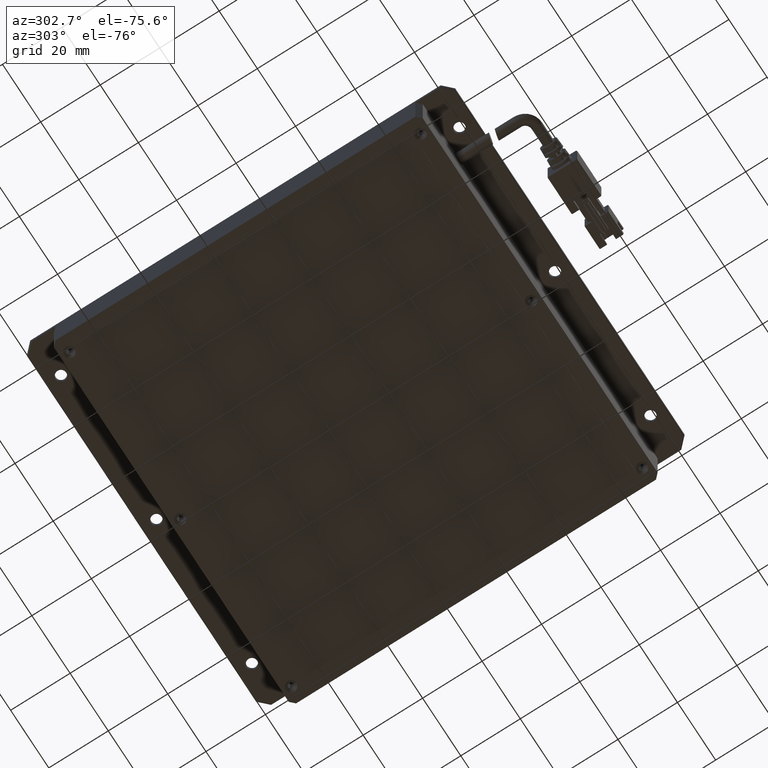
[diagram: clean part render]
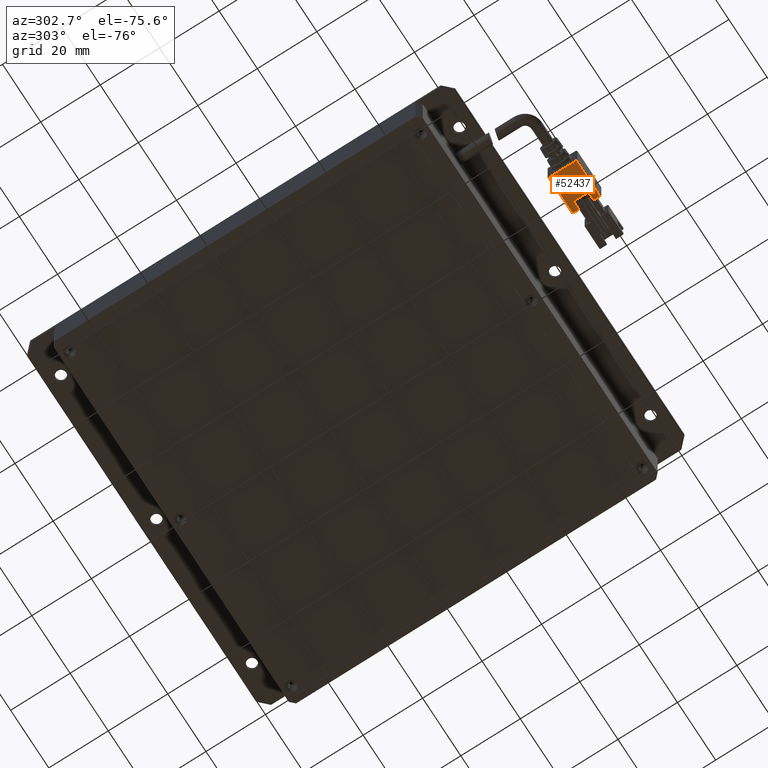
[diagram: same view with one face highlighted and labeled with its STEP entity id]
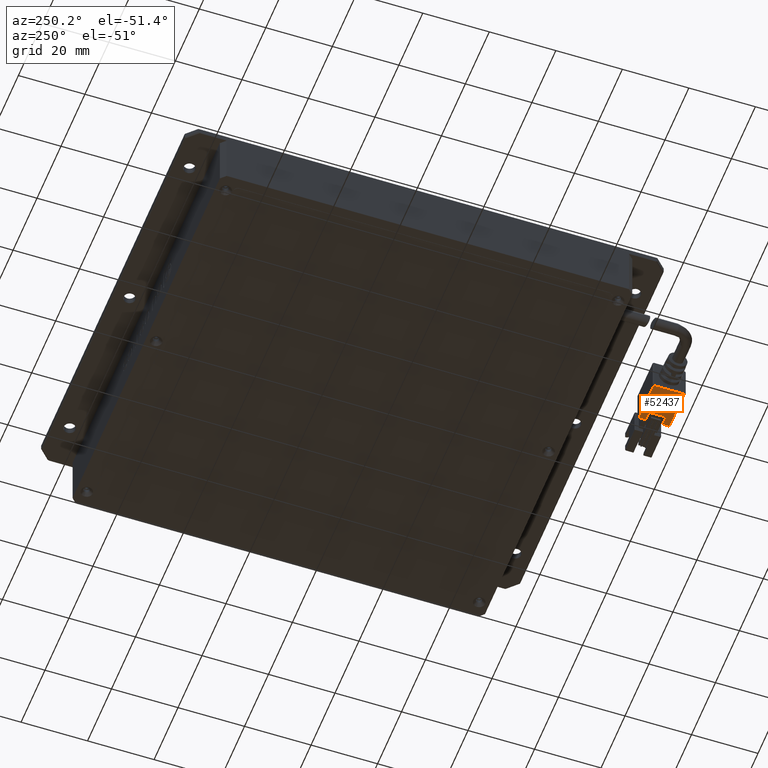
[diagram: same view with one face highlighted and labeled with its STEP entity id]
A machine part, auxiliary view. The second image highlights one B-rep face of the part: STEP entity #52437.
A second angle (auxiliary view) of the same face is appended — the face is thin or edge-on in the first view.
In plain terms, the highlighted planar face has unit normal (-0, -0, 1).
Its self-contained STEP definition (entity closure, byte-faithful):
#716 = VERTEX_POINT ( 'NONE', #25594 ) ;
#1341 = PLANE ( 'NONE',  #92382 ) ;
#4045 = DIRECTION ( 'NONE',  ( 1.000000000000000000, -6.162975822039154700E-033, 5.345529420184391300E-049 ) ) ;
#5082 = CARTESIAN_POINT ( 'NONE',  ( -16.35509736540662500, -70.11034746086289700, 7.299999999983639600 ) ) ;
#6722 = ORIENTED_EDGE ( 'NONE', *, *, #72354, .F. ) ;
#7207 = VERTEX_POINT ( 'NONE', #74140 ) ;
#9533 = CARTESIAN_POINT ( 'NONE',  ( -13.55509736540662400, -70.11034746086289700, 7.299999999983639600 ) ) ;
#11938 = CARTESIAN_POINT ( 'NONE',  ( -13.35509736540662100, -79.71034746086289100, 7.299999999983638700 ) ) ;
#12593 = CARTESIAN_POINT ( 'NONE',  ( -16.35509736540662500, -77.61034746086289700, 7.299999999983639600 ) ) ;
#12951 = DIRECTION ( 'NONE',  ( 6.162975822039154700E-033, 1.000000000000000000, 1.232595164407830900E-032 ) ) ;
#13357 = CARTESIAN_POINT ( 'NONE',  ( -16.35509736540662500, -72.61034746086289700, 7.299999999983640500 ) ) ;
#18100 = CARTESIAN_POINT ( 'NONE',  ( -13.55509736540662400, -70.11034746086289700, 7.299999999983639600 ) ) ;
#20389 = VERTEX_POINT ( 'NONE', #12593 ) ;
#21493 = ORIENTED_EDGE ( 'NONE', *, *, #28455, .F. ) ;
#23698 = VERTEX_POINT ( 'NONE', #13357 ) ;
#24217 = LINE ( 'NONE', #45388, #84105 ) ;
#25594 = CARTESIAN_POINT ( 'NONE',  ( -13.55509736540662400, -79.71034746086289100, 7.299999999983638700 ) ) ;
#25952 = DIRECTION ( 'NONE',  ( 6.162975822039154700E-033, 1.000000000000000000, 1.232595164407830900E-032 ) ) ;
#27542 = LINE ( 'NONE', #85194, #66646 ) ;
#28230 = ORIENTED_EDGE ( 'NONE', *, *, #58326, .F. ) ;
#28455 = EDGE_CURVE ( 'NONE', #78985, #44028, #68068, .T. ) ;
#28663 = LINE ( 'NONE', #18100, #88607 ) ;
#28679 = EDGE_CURVE ( 'NONE', #43944, #20389, #94809, .T. ) ;
#29864 = ORIENTED_EDGE ( 'NONE', *, *, #40926, .F. ) ;
#30716 = DIRECTION ( 'NONE',  ( -1.000000000000000000, 6.162975822039154700E-033, -5.345529420184391300E-049 ) ) ;
#31787 = CARTESIAN_POINT ( 'NONE',  ( -13.55509736540662400, -72.61034746086289700, 7.299999999983640500 ) ) ;
#31851 = EDGE_CURVE ( 'NONE', #95955, #7207, #35598, .T. ) ;
#32786 = DIRECTION ( 'NONE',  ( -5.345529420184392100E-049, -1.232595164407830900E-032, 1.000000000000000000 ) ) ;
#33147 = VECTOR ( 'NONE', #48498, 1000.000000000000000 ) ;
#35598 = LINE ( 'NONE', #9533, #33147 ) ;
#40926 = EDGE_CURVE ( 'NONE', #716, #43944, #28663, .T. ) ;
#42256 = CARTESIAN_POINT ( 'NONE',  ( -25.95509736540662300, -70.51034746086288900, 7.299999999983640500 ) ) ;
#43944 = VERTEX_POINT ( 'NONE', #87112 ) ;
#44028 = VERTEX_POINT ( 'NONE', #81999 ) ;
#45388 = CARTESIAN_POINT ( 'NONE',  ( -13.35509736540662100, -70.51034746086288900, 7.299999999983640500 ) ) ;
#46879 = DIRECTION ( 'NONE',  ( 1.000000000000000000, -6.162975822039154700E-033, 5.345529420184391300E-049 ) ) ;
#46966 = EDGE_CURVE ( 'NONE', #23698, #95955, #27542, .T. ) ;
#47376 = EDGE_CURVE ( 'NONE', #20389, #23698, #71259, .T. ) ;
#47645 = ORIENTED_EDGE ( 'NONE', *, *, #47376, .F. ) ;
#48498 = DIRECTION ( 'NONE',  ( 6.162975822039154700E-033, 1.000000000000000000, 1.232595164407830900E-032 ) ) ;
#50443 = VECTOR ( 'NONE', #12951, 1000.000000000000000 ) ;
#52437 = ADVANCED_FACE ( 'NONE', ( #58415 ), #1341, .F. ) ;
#53263 = DIRECTION ( 'NONE',  ( -1.000000000000000000, 6.162975822039154700E-033, -5.345529420184391300E-049 ) ) ;
#58326 = EDGE_CURVE ( 'NONE', #44028, #716, #84249, .T. ) ;
#58415 = FACE_OUTER_BOUND ( 'NONE', #90252, .T. ) ;
#66646 = VECTOR ( 'NONE', #46879, 1000.000000000000000 ) ;
#68068 = LINE ( 'NONE', #81752, #86445 ) ;
#71235 = ORIENTED_EDGE ( 'NONE', *, *, #28679, .F. ) ;
#71259 = LINE ( 'NONE', #5082, #50443 ) ;
#72354 = EDGE_CURVE ( 'NONE', #7207, #78985, #24217, .T. ) ;
#74140 = CARTESIAN_POINT ( 'NONE',  ( -13.55509736540662400, -70.51034746086288900, 7.299999999983640500 ) ) ;
#78160 = ORIENTED_EDGE ( 'NONE', *, *, #31851, .F. ) ;
#78985 = VERTEX_POINT ( 'NONE', #42256 ) ;
#79649 = CARTESIAN_POINT ( 'NONE',  ( -13.35509736540662100, -70.11034746086289700, 7.299999999983639600 ) ) ;
#81752 = CARTESIAN_POINT ( 'NONE',  ( -25.95509736540662600, -70.11034746086289700, 7.299999999983639600 ) ) ;
#81821 = VECTOR ( 'NONE', #4045, 1000.000000000000000 ) ;
#81999 = CARTESIAN_POINT ( 'NONE',  ( -25.95509736540662300, -79.71034746086289100, 7.299999999983638700 ) ) ;
#84105 = VECTOR ( 'NONE', #53263, 1000.000000000000000 ) ;
#84249 = LINE ( 'NONE', #11938, #81821 ) ;
#85194 = CARTESIAN_POINT ( 'NONE',  ( -13.35509736540662100, -72.61034746086289700, 7.299999999983640500 ) ) ;
#86445 = VECTOR ( 'NONE', #89528, 1000.000000000000000 ) ;
#87112 = CARTESIAN_POINT ( 'NONE',  ( -13.55509736540662400, -77.61034746086289700, 7.299999999983639600 ) ) ;
#87505 = DIRECTION ( 'NONE',  ( -6.162975822039154700E-033, -1.000000000000000000, -1.232595164407830900E-032 ) ) ;
#88607 = VECTOR ( 'NONE', #25952, 1000.000000000000000 ) ;
#89463 = ORIENTED_EDGE ( 'NONE', *, *, #46966, .F. ) ;
#89528 = DIRECTION ( 'NONE',  ( -6.162975822039154700E-033, -1.000000000000000000, -1.232595164407830900E-032 ) ) ;
#90252 = EDGE_LOOP ( 'NONE', ( #78160, #89463, #47645, #71235, #29864, #28230, #21493, #6722 ) ) ;
#92319 = VECTOR ( 'NONE', #30716, 1000.000000000000000 ) ;
#92382 = AXIS2_PLACEMENT_3D ( 'NONE', #79649, #32786, #87505 ) ;
#93236 = CARTESIAN_POINT ( 'NONE',  ( -13.35509736540662100, -77.61034746086289700, 7.299999999983639600 ) ) ;
#94809 = LINE ( 'NONE', #93236, #92319 ) ;
#95955 = VERTEX_POINT ( 'NONE', #31787 ) ;